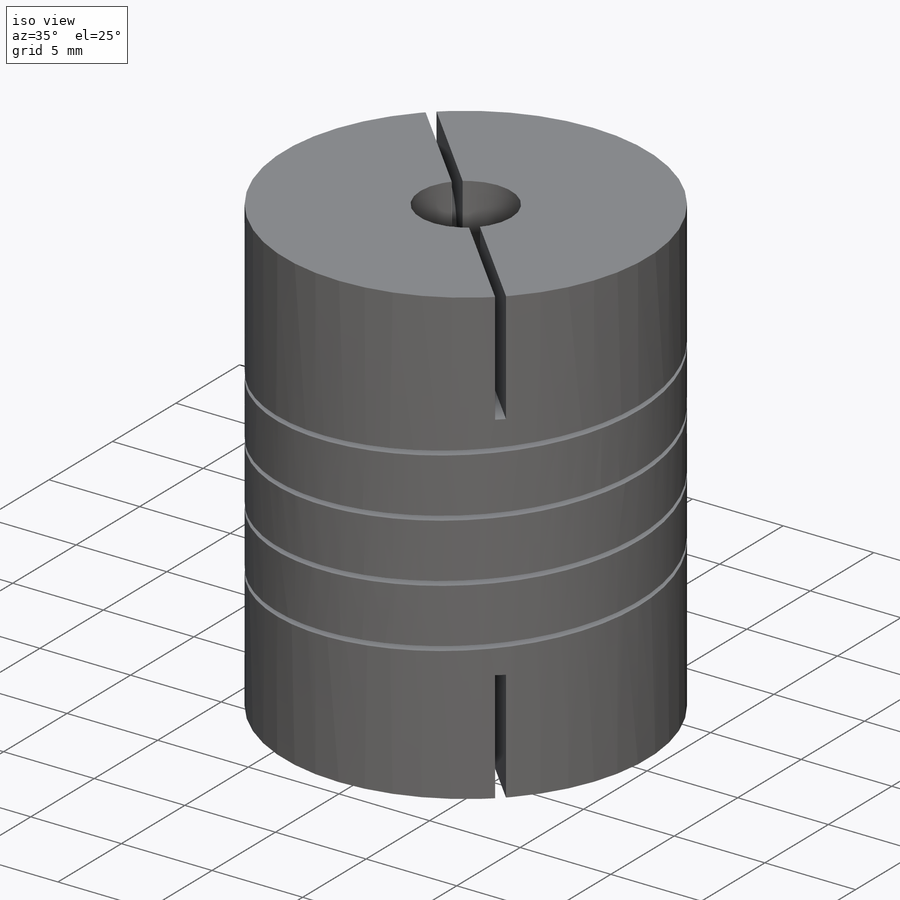
[diagram: iso view]
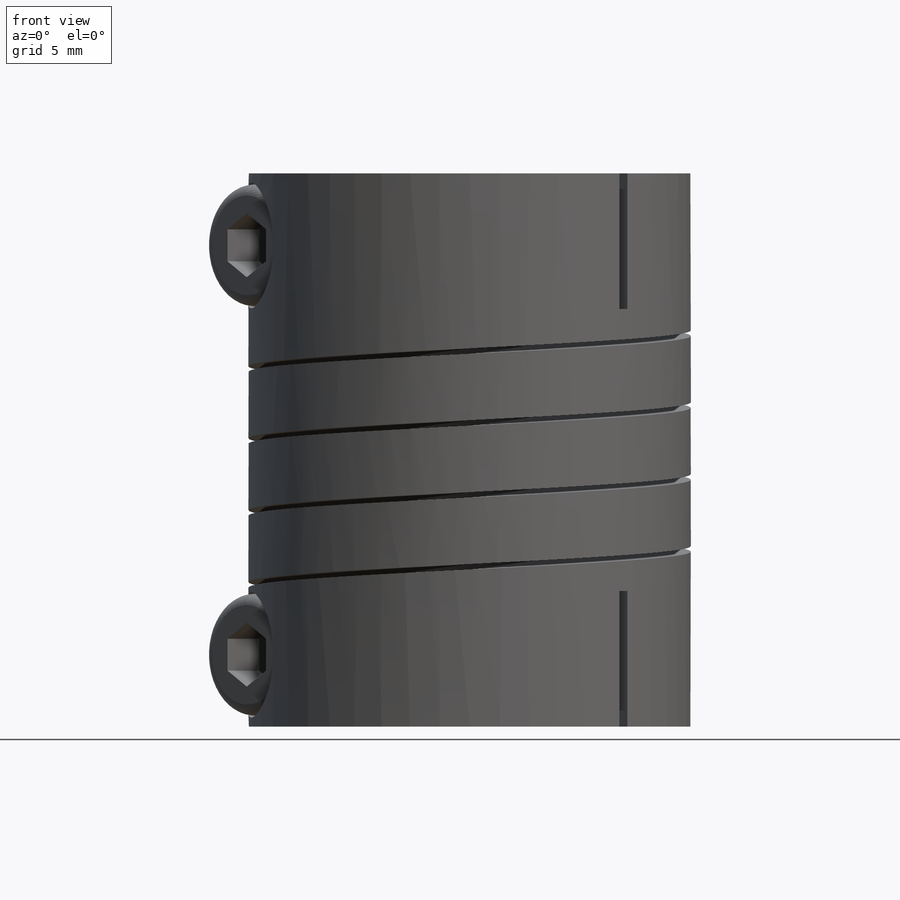
[diagram: front view]
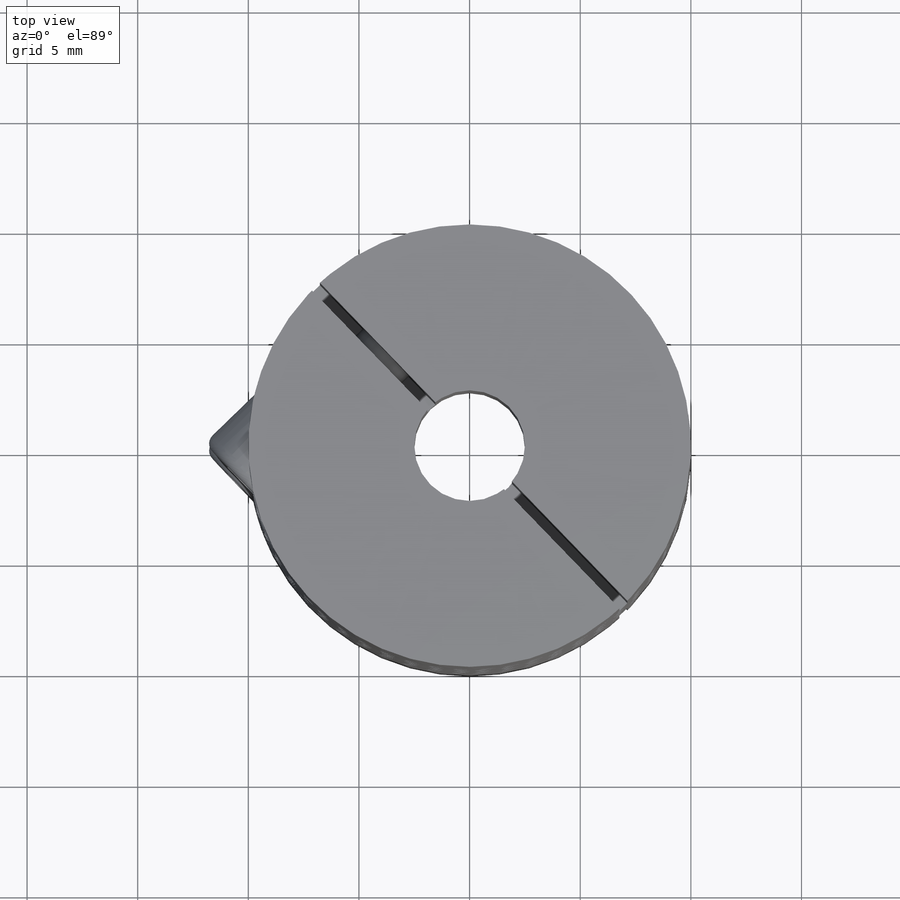
[diagram: top view]
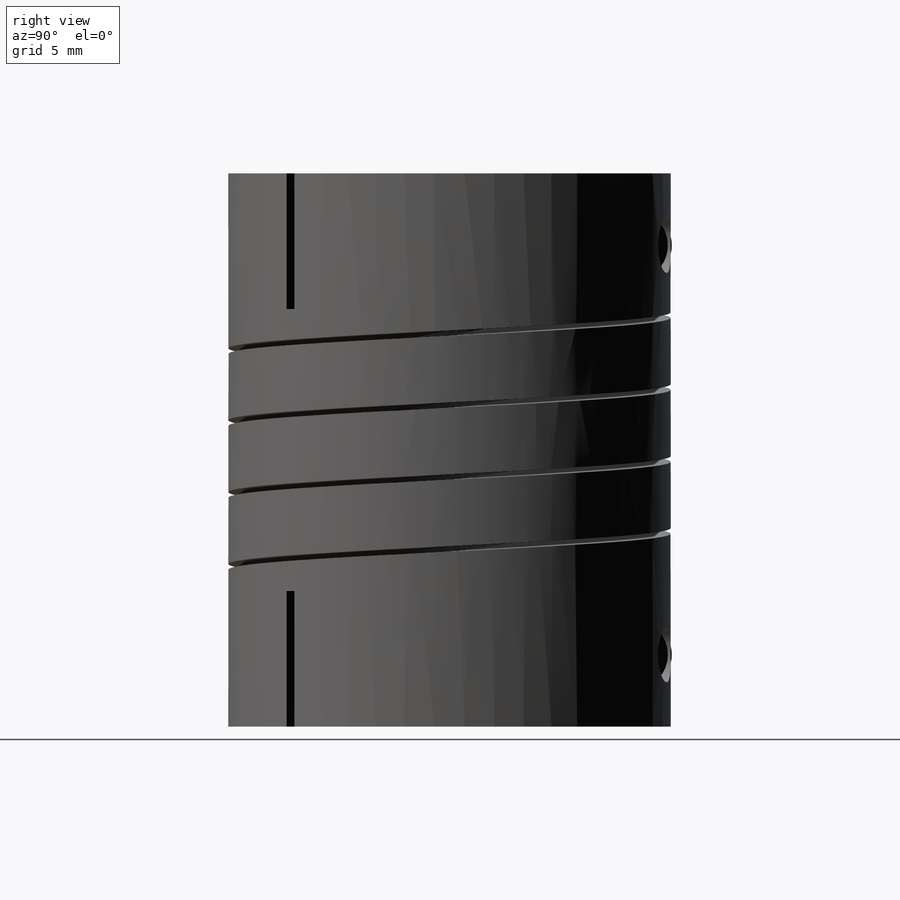
[diagram: right view]
SOLIDWORKS PART (.sldprt)
format: sldprt  version: not decoded by parser v0  size: 661,504 bytes
history: native  units: mm
features: sketch x13, cut_extrude x8, plane x6, extrude x3, fillet x2, material x1, helix x1, sweep x1 (+9 scaffold rows collapsed)
feature tree (44):
  scaffold x9  (default folders/planes/origin — collapsed)
  material  "Material <sin especificar>"
  plane  "Alzado"
  plane  "Planta"
  plane  "Vista lateral"
  sketch  "Croquis1"  dims[D1=20.0mm]
  extrude  "Saliente-Extruir1"  Depth=25mm
  sketch  "Croquis2"  dims[D1=8.0mm]
  cut_extrude  "Cortar-Extruir1"  Depth=17.2mm
  sketch  "Croquis3"  dims[D1=5.0mm]
  cut_extrude  "Cortar-Extruir2"  [1 undecoded]
  plane  "Plano1"  Offset=6mm
  sketch  "Croquis4"
  helix  "Hélice/Espiral1"  Pitch=13mm
  plane  "Plano2"
  sketch  "Croquis3D1"  dims[D1=0.25mm D2=1.0mm]
  sweep  "Cortar-Barrer1"
  sketch  "Croquis6"  dims[D1=0.25mm D2=0.25mm]
  cut_extrude  "Cortar-Extruir3"  Depth=6.125mm
  sketch  "Croquis7"  dims[D1=0.0mm]
  cut_extrude  "Cortar-Extruir6"  Depth=6.125mm
  plane  "Plano3"
  sketch  "Croquis8"  dims[c1.D1=5.7mm c1.D2=5.5mm c1.D3=5.5mm c2.D2=5.7mm c2.D3=18.5mm]
  cut_extrude  "Cortar-Extruir7"  Depth=5mm
  sketch  "Croquis10"  dims[D1=2.5mm]
  cut_extrude  "Cortar-Extruir8"  [1 undecoded]
  sketch  "Croquis11"  dims[D1=3.2mm]
  cut_extrude  "Cortar-Extruir9"  [1 undecoded]
  sketch  "Croquis12"  dims[D1=5.5mm]
  extrude  "Saliente-Extruir2"  Depth=3.5mm
  fillet  "Redondeo1"  Radius=0.5mm
  fillet  "Redondeo2"  Radius=0.5mm
  sketch  "Croquis13"  dims[D1=3.0mm]
  extrude  "Saliente-Extruir3"  Depth=12mm
  sketch  "Croquis14"  dims[D1=2.5mm]
  cut_extrude  "Cortar-Extruir10"  Depth=2mm
decode coverage: 23 of 28 modeling features carry decoded parameters
note: 3 parameter values undecoded
summary: no parameter record found for 3 features
note: suppression state not decoded; provenance and decode notes live in map.json
